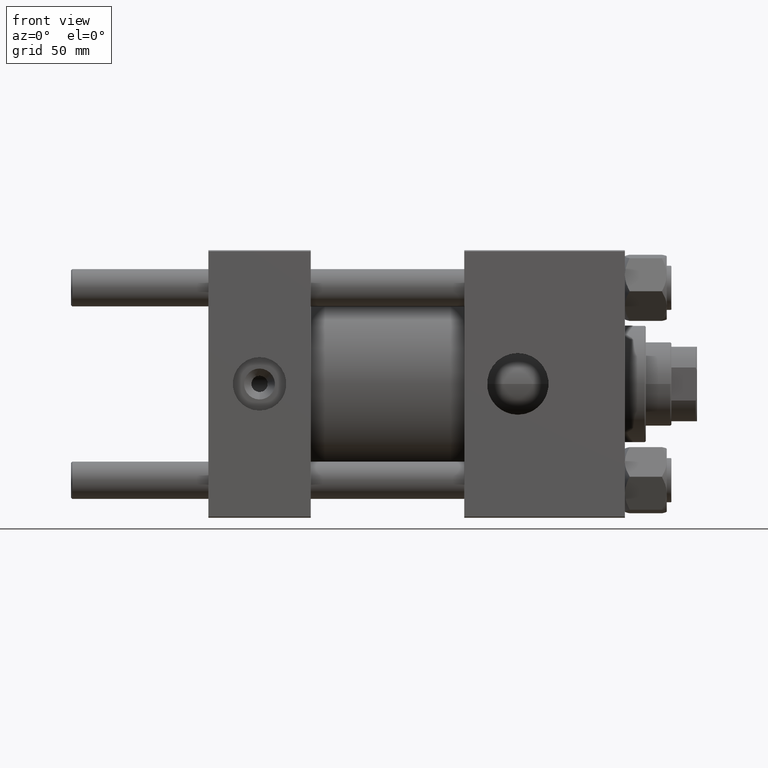
[diagram: clean part render]
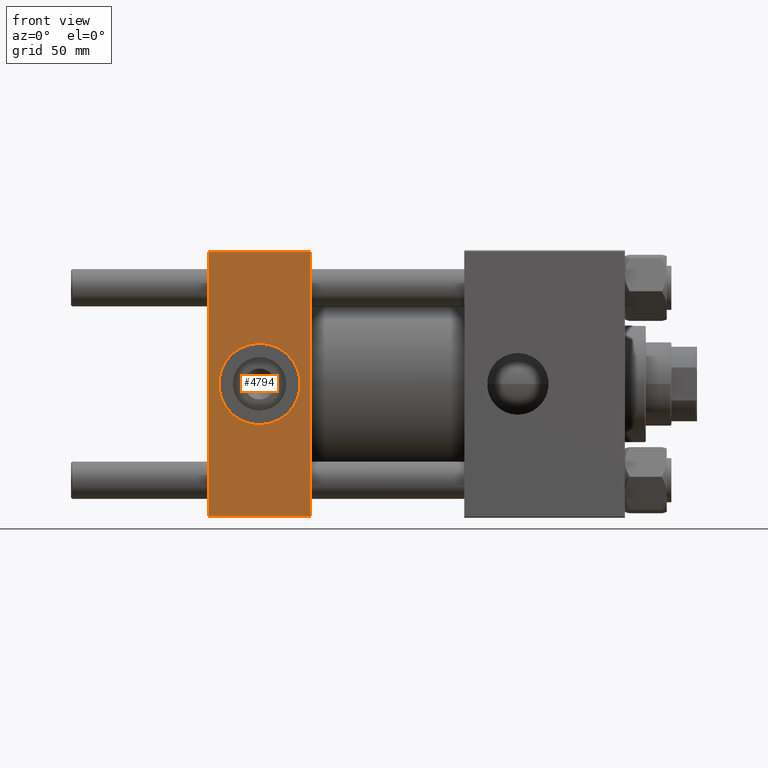
[diagram: same view with one face highlighted and labeled with its STEP entity id]
A machine part, front view. The second image highlights one B-rep face of the part: STEP entity #4794.
In plain terms, the highlighted planar face has unit normal (0, 1, 0).
Its self-contained STEP definition (entity closure, byte-faithful):
#1168 = DIRECTION ( 'NONE',  ( 0.000000000000000000, 0.000000000000000000, -1.000000000000000000 ) ) ;
#1259 = DIRECTION ( 'NONE',  ( 0.000000000000000000, 0.000000000000000000, -1.000000000000000000 ) ) ;
#1456 = LINE ( 'NONE', #47636, #48331 ) ;
#1521 = EDGE_LOOP ( 'NONE', ( #41352, #38017, #49575, #41342 ) ) ;
#1943 = AXIS2_PLACEMENT_3D ( 'NONE', #9505, #43670, #17163 ) ;
#4794 = ADVANCED_FACE ( 'NONE', ( #14385, #26358 ), #26605, .F. ) ;
#8145 = CARTESIAN_POINT ( 'NONE',  ( 0.000000000000000000, -57.50000000000000711, -57.00000000000000711 ) ) ;
#8841 = CARTESIAN_POINT ( 'NONE',  ( 22.00000000000000000, -57.50000000000000711, 0.000000000000000000 ) ) ;
#8985 = CARTESIAN_POINT ( 'NONE',  ( 44.00000000000000000, -57.50000000000000711, -57.00000000000000711 ) ) ;
#9272 = CIRCLE ( 'NONE', #1943, 17.50000000000000000 ) ;
#9493 = EDGE_CURVE ( 'NONE', #10819, #13453, #9272, .T. ) ;
#9505 = CARTESIAN_POINT ( 'NONE',  ( 22.00000000000000000, -57.50000000000000711, 0.000000000000000000 ) ) ;
#10127 = VECTOR ( 'NONE', #44960, 1000.000000000000000 ) ;
#10459 = VERTEX_POINT ( 'NONE', #21252 ) ;
#10473 = EDGE_CURVE ( 'NONE', #36312, #21034, #32434, .T. ) ;
#10819 = VERTEX_POINT ( 'NONE', #16312 ) ;
#11230 = EDGE_CURVE ( 'NONE', #13453, #10819, #35371, .T. ) ;
#11543 = DIRECTION ( 'NONE',  ( 0.000000000000000000, -0.000000000000000000, 1.000000000000000000 ) ) ;
#13453 = VERTEX_POINT ( 'NONE', #38744 ) ;
#13897 = DIRECTION ( 'NONE',  ( 0.000000000000000000, 0.000000000000000000, -1.000000000000000000 ) ) ;
#14385 = FACE_BOUND ( 'NONE', #36387, .T. ) ;
#16122 = VERTEX_POINT ( 'NONE', #25386 ) ;
#16312 = CARTESIAN_POINT ( 'NONE',  ( 22.00000000000000355, -57.50000000000000711, 17.50000000000000000 ) ) ;
#17163 = DIRECTION ( 'NONE',  ( 0.000000000000000000, 0.000000000000000000, -1.000000000000000000 ) ) ;
#20712 = AXIS2_PLACEMENT_3D ( 'NONE', #8841, #24398, #1168 ) ;
#21034 = VERTEX_POINT ( 'NONE', #40265 ) ;
#21044 = LINE ( 'NONE', #29684, #43286 ) ;
#21252 = CARTESIAN_POINT ( 'NONE',  ( 44.00000000000000000, -57.50000000000000711, 57.00000000000000711 ) ) ;
#23034 = ORIENTED_EDGE ( 'NONE', *, *, #11230, .F. ) ;
#24398 = DIRECTION ( 'NONE',  ( 0.000000000000000000, -1.000000000000000000, -8.673617379884036705E-17 ) ) ;
#24562 = EDGE_CURVE ( 'NONE', #10459, #21034, #21044, .T. ) ;
#25386 = CARTESIAN_POINT ( 'NONE',  ( 0.000000000000000000, -57.50000000000000711, 57.00000000000000711 ) ) ;
#26358 = FACE_OUTER_BOUND ( 'NONE', #1521, .T. ) ;
#26605 = PLANE ( 'NONE',  #48234 ) ;
#27714 = EDGE_CURVE ( 'NONE', #16122, #36312, #32124, .T. ) ;
#28995 = EDGE_CURVE ( 'NONE', #10459, #16122, #1456, .T. ) ;
#29684 = CARTESIAN_POINT ( 'NONE',  ( 44.00000000000000000, -57.50000000000000711, 57.49999999999999289 ) ) ;
#30187 = ORIENTED_EDGE ( 'NONE', *, *, #9493, .F. ) ;
#32124 = LINE ( 'NONE', #36210, #45860 ) ;
#32434 = LINE ( 'NONE', #8985, #10127 ) ;
#35371 = CIRCLE ( 'NONE', #20712, 17.50000000000000000 ) ;
#36153 = DIRECTION ( 'NONE',  ( -1.000000000000000000, 0.000000000000000000, 0.000000000000000000 ) ) ;
#36210 = CARTESIAN_POINT ( 'NONE',  ( 0.000000000000000000, -57.50000000000000711, 57.49999999999999289 ) ) ;
#36312 = VERTEX_POINT ( 'NONE', #8145 ) ;
#36387 = EDGE_LOOP ( 'NONE', ( #23034, #30187 ) ) ;
#38017 = ORIENTED_EDGE ( 'NONE', *, *, #10473, .T. ) ;
#38744 = CARTESIAN_POINT ( 'NONE',  ( 22.00000000000000000, -57.50000000000000711, -17.50000000000000000 ) ) ;
#40265 = CARTESIAN_POINT ( 'NONE',  ( 44.00000000000000000, -57.50000000000000711, -57.00000000000000711 ) ) ;
#41342 = ORIENTED_EDGE ( 'NONE', *, *, #28995, .T. ) ;
#41352 = ORIENTED_EDGE ( 'NONE', *, *, #27714, .T. ) ;
#41659 = DIRECTION ( 'NONE',  ( -0.000000000000000000, 1.000000000000000000, 0.000000000000000000 ) ) ;
#42153 = CARTESIAN_POINT ( 'NONE',  ( 44.00000000000000000, -57.50000000000000711, 57.49999999999999289 ) ) ;
#43286 = VECTOR ( 'NONE', #13897, 1000.000000000000000 ) ;
#43670 = DIRECTION ( 'NONE',  ( 0.000000000000000000, -1.000000000000000000, -8.673617379884036705E-17 ) ) ;
#44960 = DIRECTION ( 'NONE',  ( 1.000000000000000000, 0.000000000000000000, 0.000000000000000000 ) ) ;
#45860 = VECTOR ( 'NONE', #1259, 1000.000000000000000 ) ;
#47636 = CARTESIAN_POINT ( 'NONE',  ( 44.00000000000000000, -57.50000000000000711, 57.00000000000000711 ) ) ;
#48234 = AXIS2_PLACEMENT_3D ( 'NONE', #42153, #41659, #11543 ) ;
#48331 = VECTOR ( 'NONE', #36153, 1000.000000000000000 ) ;
#49575 = ORIENTED_EDGE ( 'NONE', *, *, #24562, .F. ) ;